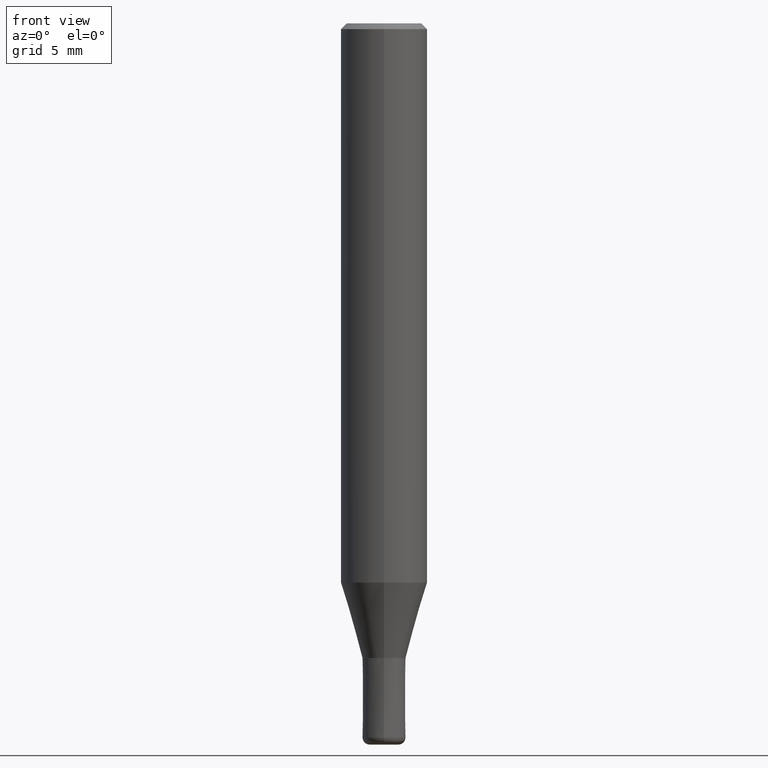
[diagram: clean part render]
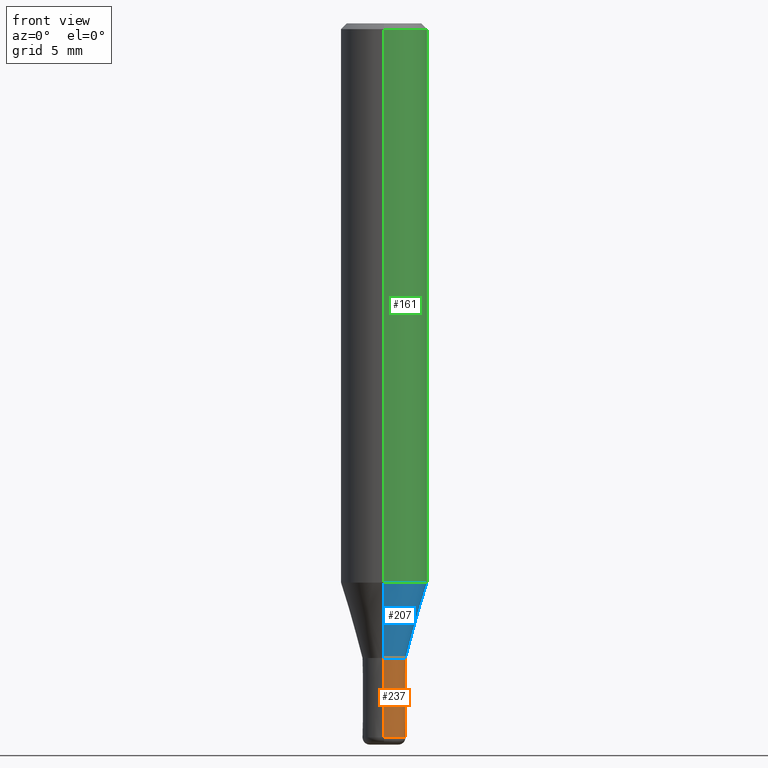
[diagram: same view with three faces highlighted in distinct colors, each labeled with its STEP entity id]
A machine part, front view with three faces highlighted in distinct colors.
Their STEP definitions:

[orange] entity #237 — the highlighted conical surface has half-angle 0.001 deg.
#123=VERTEX_POINT('',#311);
#133=EDGE_CURVE('',#123,#165,#323,.T.);
#151=VERTEX_POINT('',#344);
#165=VERTEX_POINT('',#360);
#167=EDGE_CURVE('',#151,#123,#362,.T.);
#197=VERTEX_POINT('',#398);
#205=EDGE_CURVE('',#151,#197,#408,.T.);
#237=ADVANCED_FACE('',(#443),#444,.T.);
#271=EDGE_CURVE('',#165,#197,#482,.T.);
#311=CARTESIAN_POINT('',(0.0,1.5,-49.5));
#323=CIRCLE('',#530,1.5);
#344=CARTESIAN_POINT('',(0.0,1.4999,-44.0));
#360=CARTESIAN_POINT('',(1.83690953073357E-016,-1.5,-49.5));
#362=LINE('',#582,#583);
#398=CARTESIAN_POINT('',(1.83678707009818E-016,-1.4999,-44.0));
#408=CIRCLE('',#636,1.4999);
#443=FACE_OUTER_BOUND('',#675,.T.);
#444=CONICAL_SURFACE('',#676,1.49995,1.81818181798127E-005);
#482=LINE('',#727,#728);
#530=AXIS2_PLACEMENT_3D('',#778,#779,#780);
#582=CARTESIAN_POINT('',(-1.83684830041587E-016,1.49995,-46.75));
#583=VECTOR('',#839,1.0);
#636=AXIS2_PLACEMENT_3D('',#896,#897,#898);
#675=EDGE_LOOP('',(#932,#933,#934,#935));
#676=AXIS2_PLACEMENT_3D('',#936,#937,#938);
#727=CARTESIAN_POINT('',(1.83684830041587E-016,-1.49995,-46.75));
#728=VECTOR('',#984,1.0);
#778=CARTESIAN_POINT('',(0.0,0.0,-49.5));
#779=DIRECTION('',(0.0,0.0,-1.0));
#780=DIRECTION('',(0.0,1.0,0.0));
#839=DIRECTION('',(-2.22655700658151E-021,1.81818181788109E-005,-0.999999999834711));
#896=CARTESIAN_POINT('',(0.0,0.0,-44.0));
#897=DIRECTION('',(0.0,0.0,-1.0));
#898=DIRECTION('',(0.0,1.0,0.0));
#932=ORIENTED_EDGE('',*,*,#167,.F.);
#933=ORIENTED_EDGE('',*,*,#205,.T.);
#934=ORIENTED_EDGE('',*,*,#271,.F.);
#935=ORIENTED_EDGE('',*,*,#133,.F.);
#936=CARTESIAN_POINT('',(0.0,0.0,-46.75));
#937=DIRECTION('',(0.0,-0.0,-1.0));
#938=DIRECTION('',(0.0,1.0,0.0));
#984=DIRECTION('',(-2.22655700658151E-021,1.81818181788109E-005,0.999999999834711));

[blue] entity #207 — the highlighted conical surface has half-angle 16 deg.
#141=EDGE_CURVE('',#275,#281,#333,.T.);
#155=EDGE_CURVE('',#245,#217,#348,.T.);
#179=EDGE_CURVE('',#245,#275,#375,.T.);
#207=ADVANCED_FACE('',(#410),#411,.T.);
#217=VERTEX_POINT('',#421);
#223=EDGE_CURVE('',#281,#217,#427,.T.);
#245=VERTEX_POINT('',#455);
#275=VERTEX_POINT('',#486);
#281=VERTEX_POINT('',#492);
#333=CIRCLE('',#543,1.49995);
#348=CIRCLE('',#565,2.99995);
#375=LINE('',#600,#601);
#410=FACE_OUTER_BOUND('',#638,.T.);
#411=CONICAL_SURFACE('',#639,2.24995,0.279258842899557);
#421=CARTESIAN_POINT('',(3.67375783114944E-016,-2.99995,-38.769));
#427=LINE('',#655,#656);
#455=CARTESIAN_POINT('',(0.0,2.99995,-38.769));
#486=CARTESIAN_POINT('',(0.0,1.49995,-44.0));
#492=CARTESIAN_POINT('',(1.83684830041587E-016,-1.49995,-44.0));
#543=AXIS2_PLACEMENT_3D('',#795,#796,#797);
#565=AXIS2_PLACEMENT_3D('',#814,#815,#816);
#600=CARTESIAN_POINT('',(-2.75530306578266E-016,2.24995,-41.3845));
#601=VECTOR('',#852,1.0);
#638=EDGE_LOOP('',(#900,#901,#902,#903));
#639=AXIS2_PLACEMENT_3D('',#904,#905,#906);
#655=CARTESIAN_POINT('',(2.75530306578266E-016,-2.24995,-41.3845));
#656=VECTOR('',#908,1.0);
#795=CARTESIAN_POINT('',(0.0,0.0,-44.0));
#796=DIRECTION('',(0.0,0.0,-1.0));
#797=DIRECTION('',(0.0,1.0,0.0));
#814=CARTESIAN_POINT('',(0.0,0.0,-38.769));
#815=DIRECTION('',(0.0,0.0,-1.0));
#816=DIRECTION('',(0.0,1.0,0.0));
#852=DIRECTION('',(3.37554511665356E-017,-0.275643279664313,-0.961259997282682));
#900=ORIENTED_EDGE('',*,*,#179,.F.);
#901=ORIENTED_EDGE('',*,*,#155,.T.);
#902=ORIENTED_EDGE('',*,*,#223,.F.);
#903=ORIENTED_EDGE('',*,*,#141,.F.);
#904=CARTESIAN_POINT('',(0.0,0.0,-41.3845));
#905=DIRECTION('',(-0.0,-0.0,1.0));
#906=DIRECTION('',(0.0,1.0,0.0));
#908=DIRECTION('',(3.37554511665357E-017,-0.275643279664313,0.961259997282682));

[green] entity #161 — the highlighted cylindrical surface (partial cylindrical patch) has radius 3 mm, axis along (-0, -0, 1).
#161=ADVANCED_FACE('',(#354),#355,.T.);
#171=VERTEX_POINT('',#367);
#185=VERTEX_POINT('',#383);
#187=VERTEX_POINT('',#385);
#191=VERTEX_POINT('',#391);
#201=EDGE_CURVE('',#185,#171,#404,.T.);
#253=EDGE_CURVE('',#191,#171,#464,.T.);
#277=EDGE_CURVE('',#185,#187,#488,.T.);
#279=EDGE_CURVE('',#187,#191,#490,.T.);
#354=FACE_OUTER_BOUND('',#573,.T.);
#355=CYLINDRICAL_SURFACE('',#574,3.0);
#367=CARTESIAN_POINT('',(3.67381906146713E-016,-3.0,-0.399999999999999));
#383=CARTESIAN_POINT('',(0.0,3.0,-0.399999999999999));
#385=CARTESIAN_POINT('',(0.0,3.0,-38.769));
#391=CARTESIAN_POINT('',(3.67381906146713E-016,-3.0,-38.769));
#404=CIRCLE('',#631,3.0);
#464=LINE('',#699,#700);
#488=LINE('',#736,#737);
#490=CIRCLE('',#740,3.0);
#573=EDGE_LOOP('',(#824,#825,#826,#827));
#574=AXIS2_PLACEMENT_3D('',#828,#829,#830);
#631=AXIS2_PLACEMENT_3D('',#893,#894,#895);
#699=CARTESIAN_POINT('',(3.67381906146713E-016,-3.0,-19.5845));
#700=VECTOR('',#969,1.0);
#736=CARTESIAN_POINT('',(-3.67381906146713E-016,3.0,-19.5845));
#737=VECTOR('',#988,1.0);
#740=AXIS2_PLACEMENT_3D('',#989,#990,#991);
#824=ORIENTED_EDGE('',*,*,#277,.F.);
#825=ORIENTED_EDGE('',*,*,#201,.T.);
#826=ORIENTED_EDGE('',*,*,#253,.F.);
#827=ORIENTED_EDGE('',*,*,#279,.F.);
#828=CARTESIAN_POINT('',(0.0,0.0,-19.5845));
#829=DIRECTION('',(-0.0,-0.0,1.0));
#830=DIRECTION('',(0.0,1.0,0.0));
#893=CARTESIAN_POINT('',(0.0,0.0,-0.399999999999999));
#894=DIRECTION('',(0.0,0.0,-1.0));
#895=DIRECTION('',(0.0,1.0,0.0));
#969=DIRECTION('',(-0.0,-0.0,1.0));
#988=DIRECTION('',(0.0,0.0,-1.0));
#989=CARTESIAN_POINT('',(0.0,0.0,-38.769));
#990=DIRECTION('',(0.0,0.0,-1.0));
#991=DIRECTION('',(0.0,1.0,0.0));